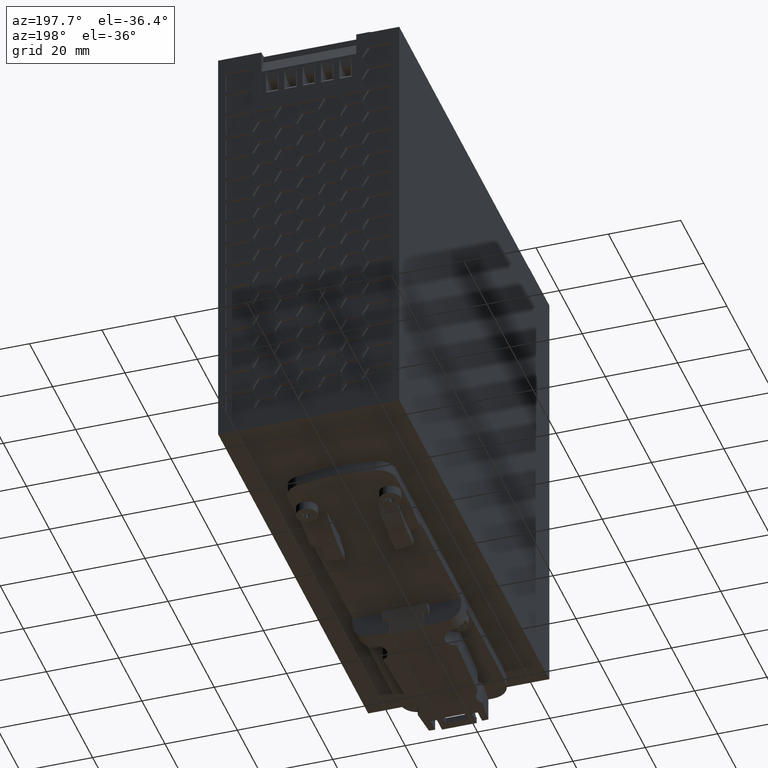
[diagram: clean part render]
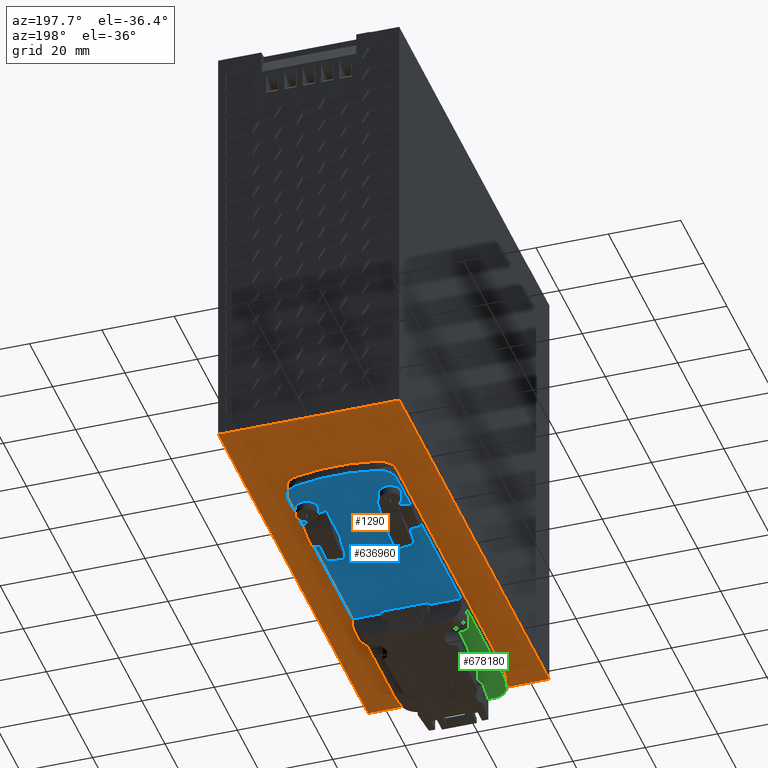
[diagram: same view with three faces highlighted in distinct colors, each labeled with its STEP entity id]
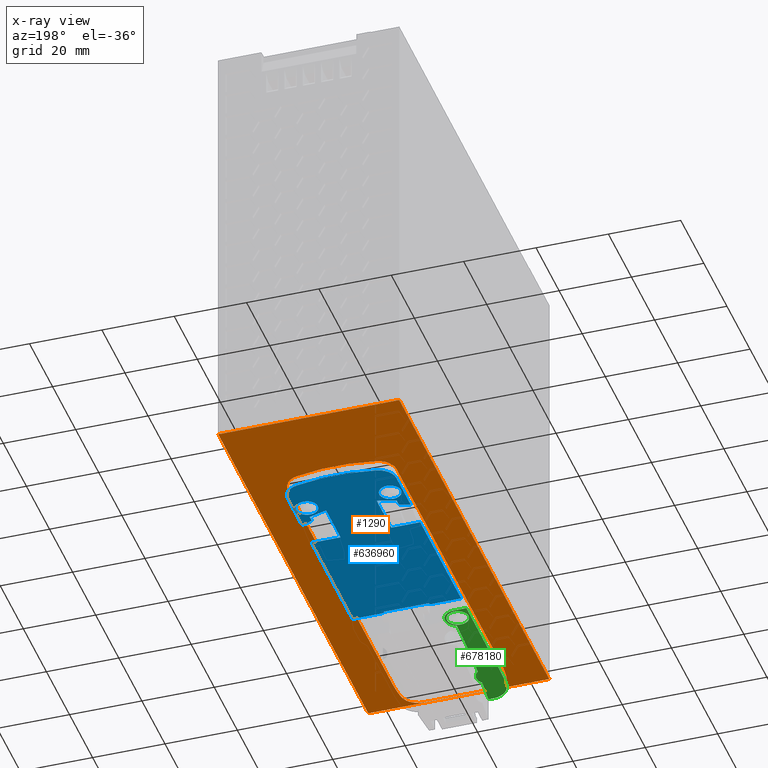
[diagram: x-ray of the same camera — body ghosted, the three highlighted faces saturated]
A machine part, auxiliary view with three faces highlighted in distinct colors.
The next image is the same camera in x-ray (body ghosted, the three faces saturated) — at least one of them is partly hidden behind the body in this view.
Their STEP definitions:

[orange] entity #1290 — the highlighted planar face has unit normal (0, 0, -1).
#10=CARTESIAN_POINT('',(12.,-0.0999999999988432,0.));
#20=DIRECTION('',(0.,-1.,0.));
#30=DIRECTION('',(1.,0.,0.));
#40=AXIS2_PLACEMENT_3D('',#10,#20,#30);
#50=PLANE('',#40);
#60=CARTESIAN_POINT('',(0.,-0.0999999999988432,-0.800000000000011));
#70=DIRECTION('',(-1.,0.,0.));
#80=VECTOR('',#70,1.);
#90=LINE('',#60,#80);
#100=CARTESIAN_POINT('',(36.,-0.0999999999988432,-0.800000000000011));
#110=VERTEX_POINT('',#100);
#120=CARTESIAN_POINT('',(-14.06,-0.0999999999988432,-0.800000000000011))
;
#130=VERTEX_POINT('',#120);
#140=EDGE_CURVE('',#110,#130,#90,.T.);
#150=ORIENTED_EDGE('',*,*,#140,.F.);
#160=CARTESIAN_POINT('',(-14.06,-0.0999999999988432,0.));
#170=DIRECTION('',(0.,0.,1.));
#180=VECTOR('',#170,1.);
#190=LINE('',#160,#180);
#200=CARTESIAN_POINT('',(-14.06,-0.0999999999988432,129.2));
#210=VERTEX_POINT('',#200);
#220=EDGE_CURVE('',#130,#210,#190,.T.);
#230=ORIENTED_EDGE('',*,*,#220,.F.);
#240=CARTESIAN_POINT('',(0.,-0.0999999999988432,129.2));
#250=DIRECTION('',(1.,0.,0.));
#260=VECTOR('',#250,1.);
#270=LINE('',#240,#260);
#280=CARTESIAN_POINT('',(36.,-0.0999999999988432,129.2));
#290=VERTEX_POINT('',#280);
#300=EDGE_CURVE('',#210,#290,#270,.T.);
#310=ORIENTED_EDGE('',*,*,#300,.F.);
#320=CARTESIAN_POINT('',(36.,-0.0999999999988432,0.));
#330=DIRECTION('',(0.,0.,-1.));
#340=VECTOR('',#330,1.);
#350=LINE('',#320,#340);
#360=EDGE_CURVE('',#290,#110,#350,.T.);
#370=ORIENTED_EDGE('',*,*,#360,.F.);
#380=EDGE_LOOP('',(#370,#310,#230,#150));
#390=FACE_OUTER_BOUND('',#380,.T.);
#400=CARTESIAN_POINT('',(0.939522317646622,-0.0999999999988432,
28.126498131923));
#410=DIRECTION('',(9.09881891095558E-45,-1.,1.32377063662335E-39));
#420=DIRECTION('',(1.37468202359202E-5,1.32377063662335E-39,
0.999999999905512));
#430=AXIS2_PLACEMENT_3D('',#400,#410,#420);
#440=CIRCLE('',#430,5.);
#450=CARTESIAN_POINT('',(-4.06047768188094,-0.0999999999988432,
28.1265668660242));
#460=VERTEX_POINT('',#450);
#470=CARTESIAN_POINT('',(-0.17165580883618,-0.0999999999988432,
23.2515331914105));
#480=VERTEX_POINT('',#470);
#490=EDGE_CURVE('',#460,#480,#440,.T.);
#500=ORIENTED_EDGE('',*,*,#490,.F.);
#510=CARTESIAN_POINT('',(10.9401254559918,-0.0999999999988432,
72.0011825965356));
#520=DIRECTION('',(9.09881891095558E-45,-1.,1.32377063662335E-39));
#530=DIRECTION('',(-0.999999999905512,9.09881806515498E-45,
1.37468202359202E-5));
#540=AXIS2_PLACEMENT_3D('',#510,#520,#530);
#550=CIRCLE('',#540,50.);
#560=CARTESIAN_POINT('',(22.0505664112863,-0.0999999999988432,
23.2512277065164));
#570=VERTEX_POINT('',#560);
#580=EDGE_CURVE('',#480,#570,#550,.T.);
#590=ORIENTED_EDGE('',*,*,#580,.F.);
#600=CARTESIAN_POINT('',(20.9395223157569,-0.0999999999988432,
28.1262231955183));
#610=DIRECTION('',(9.09881891095558E-45,-1.,1.32377063662335E-39));
#620=DIRECTION('',(1.37468202359202E-5,1.32377063662335E-39,
0.999999999905512));
#630=AXIS2_PLACEMENT_3D('',#600,#610,#620);
#640=CIRCLE('',#630,5.);
#650=CARTESIAN_POINT('',(25.9395223152844,-0.0999999999988432,
28.1261544614171));
#660=VERTEX_POINT('',#650);
#670=EDGE_CURVE('',#570,#660,#640,.T.);
#680=ORIENTED_EDGE('',*,*,#670,.F.);
#690=CARTESIAN_POINT('',(25.9391356700951,-0.0999999999988432,0.));
#700=DIRECTION('',(-1.37468202359202E-5,0.,-0.999999999905512));
#710=VECTOR('',#700,1.);
#720=LINE('',#690,#710);
#730=CARTESIAN_POINT('',(25.9407715551256,-0.0999999999988432,
119.000976389791));
#740=VERTEX_POINT('',#730);
#750=EDGE_CURVE('',#740,#660,#720,.T.);
#760=ORIENTED_EDGE('',*,*,#750,.T.);
#770=CARTESIAN_POINT('',(-14.0592284410949,-0.0999999999988432,
119.001526262601));
#780=DIRECTION('',(9.09881891095558E-45,-1.,1.32377063662335E-39));
#790=DIRECTION('',(0.999999999905512,-9.09881806515498E-45,
-1.37468202359202E-5));
#800=AXIS2_PLACEMENT_3D('',#770,#780,#790);
#810=CIRCLE('',#800,40.);
#820=CARTESIAN_POINT('',(25.5305828528543,-0.0999999999988432,
124.715267743407));
#830=VERTEX_POINT('',#820);
#840=EDGE_CURVE('',#740,#830,#810,.T.);
#850=ORIENTED_EDGE('',*,*,#840,.F.);
#860=CARTESIAN_POINT('',(20.5818564411106,-0.0999999999988432,
124.001050058306));
#870=DIRECTION('',(9.09881891095558E-45,-1.,1.32377063662335E-39));
#880=DIRECTION('',(1.37468202359202E-5,1.32377063662335E-39,
0.999999999905512));
#890=AXIS2_PLACEMENT_3D('',#860,#870,#880);
#900=CIRCLE('',#890,5.);
#910=CARTESIAN_POINT('',(20.5819251752118,-0.0999999999988432,
129.001050057834));
#920=VERTEX_POINT('',#910);
#930=EDGE_CURVE('',#830,#920,#900,.T.);
#940=ORIENTED_EDGE('',*,*,#930,.F.);
#950=CARTESIAN_POINT('',(0.,-0.0999999999988432,129.001332993859));
#960=DIRECTION('',(-0.999999999905512,0.,1.37468202359202E-5));
#970=VECTOR('',#960,1.);
#980=LINE('',#950,#970);
#990=CARTESIAN_POINT('',(1.29989287427866,-0.0999999999988432,
129.001315124466));
#1000=VERTEX_POINT('',#990);
#1010=EDGE_CURVE('',#920,#1000,#980,.T.);
#1020=ORIENTED_EDGE('',*,*,#1010,.F.);
#1030=CARTESIAN_POINT('',(1.29982414017748,-0.0999999999988432,
124.001315124938));
#1040=DIRECTION('',(9.09881891095558E-45,-1.,1.32377063662335E-39));
#1050=DIRECTION('',(1.37468202359202E-5,1.32377063662335E-39,
0.999999999905512));
#1060=AXIS2_PLACEMENT_3D('',#1030,#1040,#1050);
#1070=CIRCLE('',#1060,5.);
#1080=CARTESIAN_POINT('',(-3.64888263325155,-0.0999999999988432,
124.715668868274));
#1090=VERTEX_POINT('',#1080);
#1100=EDGE_CURVE('',#1000,#1090,#1070,.T.);
#1110=ORIENTED_EDGE('',*,*,#1100,.F.);
#1120=CARTESIAN_POINT('',(35.9407715541807,-0.0999999999988432,
119.000838921589));
#1130=DIRECTION('',(9.09881891095558E-45,-1.,1.32377063662335E-39));
#1140=DIRECTION('',(-0.999999999905512,9.09881806515498E-45,
1.37468202359202E-5));
#1150=AXIS2_PLACEMENT_3D('',#1120,#1130,#1140);
#1160=CIRCLE('',#1150,40.);
#1170=CARTESIAN_POINT('',(-4.0592284420398,-0.0999999999988432,
119.001388794398));
#1180=VERTEX_POINT('',#1170);
#1190=EDGE_CURVE('',#1090,#1180,#1160,.T.);
#1200=ORIENTED_EDGE('',*,*,#1190,.F.);
#1210=CARTESIAN_POINT('',(-4.06086433273954,-0.0999999999988432,0.));
#1220=DIRECTION('',(-1.37468202359202E-5,0.,-0.999999999905512));
#1230=VECTOR('',#1220,1.);
#1240=LINE('',#1210,#1230);
#1250=EDGE_CURVE('',#1180,#460,#1240,.T.);
#1260=ORIENTED_EDGE('',*,*,#1250,.F.);
#1270=EDGE_LOOP('',(#1260,#1200,#1110,#1020,#940,#850,#760,#680,#590,
#500));
#1280=FACE_BOUND('',#1270,.T.);
#1290=ADVANCED_FACE('',(#390,#1280),#50,.T.);

[blue] entity #636960 — the highlighted planar face has unit normal (0, 0, -1).
#629230=CARTESIAN_POINT('',(-6.49311264833948,-6.07193078061609,
57.3083356895926));
#629240=CARTESIAN_POINT('',(-4.6269376347762,-6.48936042862193,
57.3066117863316));
#629250=CARTESIAN_POINT('',(-2.76076262121292,-6.90679007662779,
57.3048878830707));
#629260=CARTESIAN_POINT('',(0.632009130355229,-7.66569184507289,
57.3017537663647));
#629270=CARTESIAN_POINT('',(2.24884621746503,-7.91225648277388,
57.3005178839394));
#629280=CARTESIAN_POINT('',(5.68752983157772,-8.2731262918686,
57.2980422244164));
#629290=CARTESIAN_POINT('',(7.58933904850747,-8.47271008789782,
57.296673028344));
#629300=CARTESIAN_POINT('',(9.4911482654372,-8.67229388392702,
57.2953038322716));
#629310=CARTESIAN_POINT('',(-6.51405997010994,-6.15724139880369,
55.2493173847864));
#629320=CARTESIAN_POINT('',(-4.63738426922734,-6.54111271368932,
55.2804699159845));
#629330=CARTESIAN_POINT('',(-2.76070856834474,-6.92498402857495,
55.3116224471826));
#629340=CARTESIAN_POINT('',(0.631902455826289,-7.61893773305972,
55.3679392741783));
#629350=CARTESIAN_POINT('',(2.24798183928126,-7.85151923842788,
55.3934363849417));
#629360=CARTESIAN_POINT('',(5.68595478527752,-8.19073841994543,
55.4426996221202));
#629370=CARTESIAN_POINT('',(7.58944450955992,-8.37855264549077,
55.4699750158557));
#629380=CARTESIAN_POINT('',(9.49293423384233,-8.56636687103612,
55.4972504095912));
#629390=CARTESIAN_POINT('',(-6.53163447362271,-6.24398788001157,
53.189671870789));
#629400=CARTESIAN_POINT('',(-4.64614449454963,-6.59358293026684,
53.2540144410418));
#629410=CARTESIAN_POINT('',(-2.76065451547655,-6.94317798052213,
53.3183570112946));
#629420=CARTESIAN_POINT('',(0.631795781297349,-7.57218362104654,
53.4341247819919));
#629430=CARTESIAN_POINT('',(2.24711746109748,-7.79078199408189,
53.486354885944));
#629440=CARTESIAN_POINT('',(5.68437973897732,-8.10835054802222,
53.5873570198239));
#629450=CARTESIAN_POINT('',(7.58881135334062,-8.28430092508354,
53.6433177354541));
#629460=CARTESIAN_POINT('',(9.49324296770391,-8.46025130214486,
53.6992784510844));
#629470=CARTESIAN_POINT('',(-6.5673332202858,-6.45036189252249,
49.4199811770693));
#629480=CARTESIAN_POINT('',(-4.66392953439311,-6.71903220769434,
49.3256063479099));
#629490=CARTESIAN_POINT('',(-2.76052584850043,-6.98770252286618,
49.2312315187505));
#629500=CARTESIAN_POINT('',(0.631554660502871,-7.46650339217036,
49.06304490605));
#629510=CARTESIAN_POINT('',(2.24507821751446,-7.64749050650361,
48.9871625391904));
#629520=CARTESIAN_POINT('',(5.6804282860973,-7.90004534760166,
48.8404112688814));
#629530=CARTESIAN_POINT('',(7.58839347456976,-8.0403122302702,
48.7589068196917));
#629540=CARTESIAN_POINT('',(9.49635866304222,-8.18057911293872,
48.677402370502));
#629550=CARTESIAN_POINT('',(-6.52104582401323,-6.04829819696226,
45.2953865490059));
#629560=CARTESIAN_POINT('',(-4.63536481747004,-6.2131075275444,
44.9574662681262));
#629570=CARTESIAN_POINT('',(-2.74968381092684,-6.37791685812655,
44.6195459872464));
#629580=CARTESIAN_POINT('',(0.620626125105877,-6.6724833953534,
44.0155752857947));
#629590=CARTESIAN_POINT('',(2.22881840977133,-6.78591233526711,
43.7673373010039));
#629600=CARTESIAN_POINT('',(5.66378801480138,-6.93921185831042,
43.331495312676));
#629610=CARTESIAN_POINT('',(7.55679252733617,-7.02369490248801,
43.0913037111408));
#629620=CARTESIAN_POINT('',(9.44979703987094,-7.1081779466656,
42.8511121096056));
#629630=CARTESIAN_POINT('',(-6.38285937228092,-4.37137928671241,
41.4705051566888));
#629640=CARTESIAN_POINT('',(-4.55984905978044,-4.41269459471098,
40.9134631901381));
#629650=CARTESIAN_POINT('',(-2.73683874727997,-4.45400990270954,
40.3564212235873));
#629660=CARTESIAN_POINT('',(0.60771101026463,-4.529808214108,
39.3344552141828));
#629670=CARTESIAN_POINT('',(2.21064428553766,-4.55892010890649,
38.9216568595576));
#629680=CARTESIAN_POINT('',(5.64634012675711,-4.60628942507581,
38.204710604203));
#629690=CARTESIAN_POINT('',(7.50453092280356,-4.63190904665722,
37.8169513279083));
#629700=CARTESIAN_POINT('',(9.36272171885001,-4.65752866823862,
37.4291920516136));
#629710=CARTESIAN_POINT('',(-6.23979277964302,-2.2984814082195,
38.2701099862047));
#629720=CARTESIAN_POINT('',(-4.48620226584649,-2.27340280328271,
37.5817432692417));
#629730=CARTESIAN_POINT('',(-2.73261175204996,-2.24832419834591,
36.8933765522788));
#629740=CARTESIAN_POINT('',(0.603402349360829,-2.20061489617154,
35.5838341838279));
#629750=CARTESIAN_POINT('',(2.20461078322252,-2.18229146073094,
35.0507715196252));
#629760=CARTESIAN_POINT('',(5.64057713109693,-2.15248573584879,
34.1031461053622));
#629770=CARTESIAN_POINT('',(7.45673246209035,-2.13673126660833,
33.6022579203067));
#629780=CARTESIAN_POINT('',(9.27288779308378,-2.12097679736788,
33.1013697352512));
#629790=CARTESIAN_POINT('',(-6.26183325276123,-1.17379962331364,
36.5533334629942));
#629800=CARTESIAN_POINT('',(-4.49630347037309,-1.17569003400325,
35.8816504820132));
#629810=CARTESIAN_POINT('',(-2.73077368798494,-1.17758044469284,
35.2099675010321));
#629820=CARTESIAN_POINT('',(0.601516488174113,-1.18114843716324,
33.9422219091175));
#629830=CARTESIAN_POINT('',(2.20207817055491,-1.18468186249413,
33.4259352744864));
#629840=CARTESIAN_POINT('',(5.63834527513697,-1.19896955720663,
32.5076278897219));
#629850=CARTESIAN_POINT('',(7.4603950511381,-1.20654547903056,
32.0207036449566));
#629860=CARTESIAN_POINT('',(9.28244482713924,-1.2141214008545,
31.5337794001913));
#629870=CARTESIAN_POINT('',(-6.28240593840731,-0.0482856258175648,
34.8353419902482));
#629880=CARTESIAN_POINT('',(-4.50567078116362,-0.0775611584286739,
34.1809502200168));
#629890=CARTESIAN_POINT('',(-2.72893562391993,-0.106836691039769,
33.5265584497853));
#629900=CARTESIAN_POINT('',(0.599630626987395,-0.16168197815494,
32.3006096344071));
#629910=CARTESIAN_POINT('',(2.1995455578873,-0.187072264257319,
31.8010990293476));
#629920=CARTESIAN_POINT('',(5.63611341917701,-0.24545337856445,
30.9121096740816));
#629930=CARTESIAN_POINT('',(7.46348624617957,-0.276497160093315,
30.4393953099607));
#629940=CARTESIAN_POINT('',(9.29085907318212,-0.307540941622173,
29.9666809458399));
#629950=B_SPLINE_SURFACE_WITH_KNOTS('',3,3,((#629230,#629310,#629390,
#629470,#629550,#629630,#629710,#629790,#629870),(#629240,#629320,
#629400,#629480,#629560,#629640,#629720,#629800,#629880),(#629250,
#629330,#629410,#629490,#629570,#629650,#629730,#629810,#629890),(
#629260,#629340,#629420,#629500,#629580,#629660,#629740,#629820,#629900)
,(#629270,#629350,#629430,#629510,#629590,#629670,#629750,#629830,
#629910),(#629280,#629360,#629440,#629520,#629600,#629680,#629760,
#629840,#629920),(#629290,#629370,#629450,#629530,#629610,#629690,
#629770,#629850,#629930),(#629300,#629380,#629460,#629540,#629620,
#629700,#629780,#629860,#629940)),.UNSPECIFIED.,.F.,.F.,.F.,(4,2,2,4),(4
,2,1,2,4),(-0.530299195767868,0.0083302807718563,0.494384454739451,
1.03935536184108),(-0.34261094403884,2.36588213699451E-9,0.4974044135323
,0.994808800538165,1.33311810925078),.UNSPECIFIED.);
#630520=CARTESIAN_POINT('',(3.93963210021943,-3.09999999999985,
36.1125114391922));
#630530=VERTEX_POINT('',#630520);
#630560=CARTESIAN_POINT('',(5.71470414482225,-3.09999999999985,
41.3533186847772));
#630570=DIRECTION('',(9.09881891095558E-45,-1.,1.32377063662335E-39));
#630580=DIRECTION('',(-0.999999999905512,9.09881806515498E-45,
1.37468202359202E-5));
#630590=AXIS2_PLACEMENT_3D('',#630560,#630570,#630580);
#630600=PLANE('',#630590);
#630610=CARTESIAN_POINT('',(3.93963210021943,-3.09999999999985,
36.1125114391922));
#630620=CARTESIAN_POINT('',(3.51710526948471,-3.09999999999985,
36.2180883742663));
#630630=CARTESIAN_POINT('',(3.09562910633337,-3.09999999999985,
36.3273275225661));
#630640=CARTESIAN_POINT('',(2.67551978532777,-3.09999999999985,
36.4429976686897));
#630650=CARTESIAN_POINT('',(2.25550754492674,-3.09999999999985,
36.5586410852762));
#630660=CARTESIAN_POINT('',(1.83693345260186,-3.09999999999985,
36.6797883880292));
#630670=CARTESIAN_POINT('',(1.42000081185928,-3.09999999999985,
36.8063531855741));
#630680=CARTESIAN_POINT('',(1.00306817364785,-3.09999999999985,
36.9329179823507));
#630690=CARTESIAN_POINT('',(0.587777814351307,-3.09999999999985,
37.0648999985642));
#630700=CARTESIAN_POINT('',(0.174326512134884,-3.09999999999985,
37.2021912762752));
#630710=CARTESIAN_POINT('',(-0.239199164245867,-3.09999999999985,
37.339507250786));
#630720=CARTESIAN_POINT('',(-0.650444119146598,-3.09999999999985,
37.4826856189756));
#630730=CARTESIAN_POINT('',(-1.06034704242311,-3.09999999999985,
37.6297954035982));
#630740=B_SPLINE_CURVE_WITH_KNOTS('',3,(#630610,#630620,#630630,#630640,
#630650,#630660,#630670,#630680,#630690,#630700,#630710,#630720,#630730)
,.UNSPECIFIED.,.F.,.F.,(4,3,3,3,4),(0.,1.30662994483364,2.61370748606217
,3.92079877700309,5.22745320657172),.UNSPECIFIED.);
#630750=SURFACE_CURVE('',#630740,(#630600,#629950),.CURVE_3D.);
#630760=CARTESIAN_POINT('',(-1.0603470424231,-3.09999999999985,
37.6297954035982));
#630770=VERTEX_POINT('',#630760);
#630780=EDGE_CURVE('',#630530,#630770,#630750,.T.);
#631260=CARTESIAN_POINT('',(3.9398044684007,-3.09999999999985,
48.6512788264836));
#631270=VERTEX_POINT('',#631260);
#631300=CARTESIAN_POINT('',(3.94001819894146,-3.09999999999985,
64.1989136302145));
#631310=DIRECTION('',(-1.37468202359202E-5,-1.32377063662335E-39,
-0.999999999905512));
#631320=VECTOR('',#631310,1.);
#631330=LINE('',#631300,#631320);
#631340=EDGE_CURVE('',#631270,#630530,#631330,.T.);
#632190=CARTESIAN_POINT('',(-4.05970751872503,-3.09999999999985,
84.1513887976912));
#632200=VERTEX_POINT('',#632190);
#632230=CARTESIAN_POINT('',(-4.05998180030264,-3.09999999999985,
64.1990236047764));
#632240=DIRECTION('',(1.37468202359202E-5,1.32377063662335E-39,
0.999999999905512));
#632250=VECTOR('',#632240,1.);
#632260=LINE('',#632230,#632250);
#632270=CARTESIAN_POINT('',(-4.0601955308434,-3.09999999999985,
48.6513888010455));
#632280=VERTEX_POINT('',#632270);
#632290=EDGE_CURVE('',#632280,#632200,#632260,.T.);
#632440=CARTESIAN_POINT('',(-14.4376658252916,-1.70441604344119,
59.441377915413));
#632450=CARTESIAN_POINT('',(-10.9506281777013,-2.66315462780622,
59.4283094106237));
#632460=CARTESIAN_POINT('',(-7.46359053011099,-3.62189321217125,
59.4152409058345));
#632470=CARTESIAN_POINT('',(-3.00008473402581,-4.84910543662229,
59.3985128538982));
#632480=CARTESIAN_POINT('',(-2.0203047280858,-5.05962099943143,
59.3948774303976));
#632490=CARTESIAN_POINT('',(2.49903372379928,-5.83586521223752,
59.3790755696027));
#632500=CARTESIAN_POINT('',(6.07658387603958,-6.4503473164804,
59.3665666703259));
#632510=CARTESIAN_POINT('',(9.65413402827988,-7.06482942072328,
59.354057771049));
#632520=CARTESIAN_POINT('',(-14.5250949355407,-2.02158789203813,
55.3593402534516));
#632530=CARTESIAN_POINT('',(-10.9940123264814,-2.86380690771618,
55.4696483360222));
#632540=CARTESIAN_POINT('',(-7.46292971742216,-3.70602592339425,
55.5799564185929));
#632550=CARTESIAN_POINT('',(-3.00035671103003,-4.77042012227036,
55.7193634861034));
#632560=CARTESIAN_POINT('',(-2.02121915266269,-4.95735439245213,
55.7488345762596));
#632570=CARTESIAN_POINT('',(2.49534378186373,-5.65403637972801,
55.8783203650417));
#632580=CARTESIAN_POINT('',(6.08674578293268,-6.20801185167029,
55.9812826236626));
#632590=CARTESIAN_POINT('',(9.67814778400163,-6.76198732361257,
56.0842448822834));
#632600=CARTESIAN_POINT('',(-14.5887754189316,-2.35008544179697,
51.2726071259709));
#632610=CARTESIAN_POINT('',(-11.0255221618325,-3.0701220382071,
51.5086395286611));
#632620=CARTESIAN_POINT('',(-7.46226890473334,-3.79015863461722,
51.7446719313512));
#632630=CARTESIAN_POINT('',(-3.00062868803427,-4.69173480791843,
52.0402141183087));
#632640=CARTESIAN_POINT('',(-2.02213357723958,-4.85508778547281,
52.1027917221217));
#632650=CARTESIAN_POINT('',(2.4916538399282,-5.47220754721855,
52.3775651604807));
#632660=CARTESIAN_POINT('',(6.08995053679934,-5.96416248329236,
52.5966087848825));
#632670=CARTESIAN_POINT('',(9.68824723367049,-6.45611741936619,
52.8156524092843));
#632680=CARTESIAN_POINT('',(-14.7085461784145,-2.96885470264525,
46.2367297987539));
#632690=CARTESIAN_POINT('',(-11.0848142330258,-3.45896317019364,
46.0147845099369));
#632700=CARTESIAN_POINT('',(-7.46108228763699,-3.94907163774202,
45.7928392211199));
#632710=CARTESIAN_POINT('',(-3.00111071151312,-4.55228122041133,
45.5196761686381));
#632720=CARTESIAN_POINT('',(-2.02379912458948,-4.66881777420783,
45.4618317492313));
#632730=CARTESIAN_POINT('',(2.48459985134528,-5.11477929631874,
45.2078171302107));
#632740=CARTESIAN_POINT('',(6.10994209296155,-5.47339066875367,
45.0035561645689));
#632750=CARTESIAN_POINT('',(9.73528433457783,-5.8320020411886,
44.799295198927));
#632760=CARTESIAN_POINT('',(-14.6652376719585,-2.8222892265708,
44.2385489674479));
#632770=CARTESIAN_POINT('',(-11.0554703862404,-3.19199532570333,
43.7288859786745));
#632780=CARTESIAN_POINT('',(-7.44570310052225,-3.56170142483587,
43.2192229899011));
#632790=CARTESIAN_POINT('',(-3.00595596852884,-4.0164126190445,
42.5923751591165));
#632800=CARTESIAN_POINT('',(-2.03168508306885,-4.104183160059,
42.4656701643419));
#632810=CARTESIAN_POINT('',(2.4688448958099,-4.43934325728173,
41.9345010588));
#632820=CARTESIAN_POINT('',(6.08001376052307,-4.70827151983414,
41.5082976239085));
#632830=CARTESIAN_POINT('',(9.69118262523625,-4.97719978238656,
41.082094189017));
#632840=CARTESIAN_POINT('',(-14.3546817774305,-1.54931680142654,
39.990537531174));
#632850=CARTESIAN_POINT('',(-10.8848565265901,-1.63722363528622,
38.9349143495557));
#632860=CARTESIAN_POINT('',(-7.41503127574972,-1.72513046914591,
37.8792911679374));
#632870=CARTESIAN_POINT('',(-3.01562354533007,-1.83658795662179,
36.5408615785808));
#632880=CARTESIAN_POINT('',(-2.047259579784,-1.85819126234517,
36.2743336387178));
#632890=CARTESIAN_POINT('',(2.43838327161155,-1.9430079972902,
35.1713526041396));
#632900=CARTESIAN_POINT('',(5.94964156167467,-2.00940059107845,
34.3079643608602));
#632910=CARTESIAN_POINT('',(9.46089985173778,-2.07579318486669,
33.4445761175808));
#632920=CARTESIAN_POINT('',(-14.4826122607575,-0.225557747270857,
36.0064057095829));
#632930=CARTESIAN_POINT('',(-10.9400582087974,-0.336535036818349,
35.0973193730253));
#632940=CARTESIAN_POINT('',(-7.39750415683721,-0.447512326365834,
34.1882330364678));
#632950=CARTESIAN_POINT('',(-3.02117610244823,-0.584609183188102,
33.0651845296039));
#632960=CARTESIAN_POINT('',(-2.05589763605385,-0.612500647171688,
32.8404433325234));
#632970=CARTESIAN_POINT('',(2.42292420020921,-0.734077769296187,
31.9024411862033));
#632980=CARTESIAN_POINT('',(5.97759073861633,-0.830568798332601,
31.1579853975221));
#632990=CARTESIAN_POINT('',(9.53225727702344,-0.927059827369016,
30.4135296088408));
#633000=CARTESIAN_POINT('',(-14.592940464538,1.099745943859,
32.0011028609735));
#633010=CARTESIAN_POINT('',(-10.9864587512314,0.96492588013661,
31.2491388829858));
#633020=CARTESIAN_POINT('',(-7.37997703792472,0.830105816414216,
30.4971749049981));
#633030=CARTESIAN_POINT('',(-3.02672865956639,0.66736959024559,
29.589507480627));
#633040=CARTESIAN_POINT('',(-2.06453569232372,0.633189968001792,
29.4065530263291));
#633050=CARTESIAN_POINT('',(2.40746512880687,0.474852458697837,
28.6335297682671));
#633060=CARTESIAN_POINT('',(5.99934189781883,0.347676985329221,
28.0126434147989));
#633070=CARTESIAN_POINT('',(9.59121866683081,0.220501511960611,
27.3917570613307));
#633080=B_SPLINE_SURFACE_WITH_KNOTS('',3,3,((#632440,#632520,#632600,
#632680,#632760,#632840,#632920,#633000),(#632450,#632530,#632610,
#632690,#632770,#632850,#632930,#633010),(#632460,#632540,#632620,
#632700,#632780,#632860,#632940,#633020),(#632470,#632550,#632630,
#632710,#632790,#632870,#632950,#633030),(#632480,#632560,#632640,
#632720,#632800,#632880,#632960,#633040),(#632490,#632570,#632650,
#632730,#632810,#632890,#632970,#633050),(#632500,#632580,#632660,
#632740,#632820,#632900,#632980,#633060),(#632510,#632590,#632670,
#632750,#632830,#632910,#632990,#633070)),.UNSPECIFIED.,.F.,.F.,.F.,(4,2
,2,4),(4,2,2,4),(-1.04425037197643,0.00840241999769925,0.303174667007196
,1.36540567626834),(-0.672680963199468,0.00647129604993427,
0.596721513342289,1.28419559916893),.UNSPECIFIED.);
#633240=CARTESIAN_POINT('',(-4.06030774031951,-3.09999999999984,
40.4888119886038));
#633250=VERTEX_POINT('',#633240);
#633280=CARTESIAN_POINT('',(-4.05998180030264,-3.09999999999985,
64.1990236047764));
#633290=DIRECTION('',(1.37468202359202E-5,1.32377063662335E-39,
0.999999999905512));
#633300=VECTOR('',#633290,1.);
#633310=LINE('',#633280,#633300);
#633320=CARTESIAN_POINT('',(-4.06047768188094,-3.09999999999985,
28.1265668660242));
#633330=VERTEX_POINT('',#633320);
#633340=EDGE_CURVE('',#633330,#633250,#633310,.T.);
#633520=CARTESIAN_POINT('',(22.4395975444942,-3.09999999999985,
33.5986593169315));
#633530=DIRECTION('',(9.09881891095558E-45,-1.,1.32377063662335E-39));
#633540=DIRECTION('',(1.37468202359202E-5,1.32377063662335E-39,
0.999999999905512));
#633550=AXIS2_PLACEMENT_3D('',#633520,#633530,#633540);
#633560=CIRCLE('',#633550,3.);
#633570=CARTESIAN_POINT('',(22.4396387849549,-3.09999999999985,
36.598659316648));
#633580=VERTEX_POINT('',#633570);
#633590=CARTESIAN_POINT('',(22.4395563040335,-3.09999999999985,
30.5986593172149));
#633600=VERTEX_POINT('',#633590);
#633610=EDGE_CURVE('',#633580,#633600,#633560,.T.);
#633620=ORIENTED_EDGE('',*,*,#633610,.F.);
#633630=EDGE_CURVE('',#633600,#633580,#633560,.T.);
#633640=ORIENTED_EDGE('',*,*,#633630,.F.);
#633650=EDGE_LOOP('',(#633640,#633620));
#633660=FACE_BOUND('',#633650,.T.);
#633670=CARTESIAN_POINT('',(-0.560402453332566,-3.09999999999985,
33.5989754937969));
#633680=DIRECTION('',(9.09881891095558E-45,-1.,1.32377063662335E-39));
#633690=DIRECTION('',(1.37468202359202E-5,1.32377063662335E-39,
0.999999999905512));
#633700=AXIS2_PLACEMENT_3D('',#633670,#633680,#633690);
#633710=CIRCLE('',#633700,3.);
#633720=CARTESIAN_POINT('',(-0.560361212871858,-3.09999999999985,
36.5989754935134));
#633730=VERTEX_POINT('',#633720);
#633740=CARTESIAN_POINT('',(-0.560443693793274,-3.09999999999985,
30.5989754940803));
#633750=VERTEX_POINT('',#633740);
#633760=EDGE_CURVE('',#633730,#633750,#633710,.T.);
#633770=ORIENTED_EDGE('',*,*,#633760,.F.);
#633780=EDGE_CURVE('',#633750,#633730,#633710,.T.);
#633790=ORIENTED_EDGE('',*,*,#633780,.F.);
#633800=EDGE_LOOP('',(#633790,#633770));
#633810=FACE_BOUND('',#633800,.T.);
#633820=CARTESIAN_POINT('',(25.9400181968627,-3.09999999999985,
64.1986112001693));
#633830=DIRECTION('',(1.37468202359202E-5,1.32377063662335E-39,
0.999999999905512));
#633840=VECTOR('',#633830,1.);
#633850=LINE('',#633820,#633840);
#633860=CARTESIAN_POINT('',(25.939804466322,-3.09999999999985,
48.6509763964384));
#633870=VERTEX_POINT('',#633860);
#633880=CARTESIAN_POINT('',(25.9402924784403,-3.09999999999985,
84.1509763930841));
#633890=VERTEX_POINT('',#633880);
#633900=EDGE_CURVE('',#633870,#633890,#633850,.T.);
#633910=ORIENTED_EDGE('',*,*,#633900,.T.);
#633920=CARTESIAN_POINT('',(35.9398044653771,-3.09999999999985,
48.650838928236));
#633930=DIRECTION('',(0.999999999905512,-9.09881806515498E-45,
-1.37468202359202E-5));
#633940=VECTOR('',#633930,1.);
#633950=LINE('',#633920,#633940);
#633960=CARTESIAN_POINT('',(17.9398044670779,-3.09999999999985,
48.6510863710003));
#633970=VERTEX_POINT('',#633960);
#633980=EDGE_CURVE('',#633970,#633870,#633950,.T.);
#633990=ORIENTED_EDGE('',*,*,#633980,.T.);
#634000=CARTESIAN_POINT('',(17.9400181976186,-3.09999999999985,
64.1987211747312));
#634010=DIRECTION('',(-1.37468202359202E-5,-1.32377063662335E-39,
-0.999999999905512));
#634020=VECTOR('',#634010,1.);
#634030=LINE('',#634000,#634020);
#634040=CARTESIAN_POINT('',(17.9396320988966,-3.10000000000198,
36.1123189837125));
#634050=VERTEX_POINT('',#634040);
#634060=EDGE_CURVE('',#633970,#634050,#634030,.T.);
#634070=ORIENTED_EDGE('',*,*,#634060,.F.);
#634080=CARTESIAN_POINT('',(28.3729595938838,-6.07193078061609,
57.3078563919651));
#634090=CARTESIAN_POINT('',(26.5067845336295,-6.48936042862193,
57.3061837966497));
#634100=CARTESIAN_POINT('',(24.6406094733752,-6.90679007662779,
57.3045112013342));
#634110=CARTESIAN_POINT('',(21.2478376369211,-7.66569184507289,
57.3014703642762));
#634120=CARTESIAN_POINT('',(19.6310005164434,-7.91225648277388,
57.300278934589));
#634130=CARTESIAN_POINT('',(16.1923168355655,-8.2731262918686,
57.2978978169979));
#634140=CARTESIAN_POINT('',(14.2905075817104,-8.47271008789782,
57.2965809085848));
#634150=CARTESIAN_POINT('',(12.3886983278552,-8.67229388392702,
57.2952640001717));
#634160=CARTESIAN_POINT('',(28.3938503057374,-6.15724139880369,
55.248837512019));
#634170=CARTESIAN_POINT('',(26.5171754620606,-6.54111271368932,
55.2800416398523));
#634180=CARTESIAN_POINT('',(24.6405006183838,-6.92498402857495,
55.3112457676857));
#634190=CARTESIAN_POINT('',(21.2478911438496,-7.61893773305972,
55.3676558698878));
#634200=CARTESIAN_POINT('',(19.6318124620138,-7.85151923842788,
55.3931974125471));
#634210=CARTESIAN_POINT('',(16.1938408717426,-8.19073841994543,
55.4425551720991));
#634220=CARTESIAN_POINT('',(14.2903518980795,-8.37855264549077,
55.4698828996864));
#634230=CARTESIAN_POINT('',(12.3868629244164,-8.56636687103612,
55.4972106272737));
#634240=CARTESIAN_POINT('',(28.4113681820903,-6.24398788001157,
53.1891915156129));
#634250=CARTESIAN_POINT('',(26.5258799727413,-6.59358293026684,
53.253585924825));
#634260=CARTESIAN_POINT('',(24.6403917633923,-6.94317798052213,
53.3179803340371));
#634270=CARTESIAN_POINT('',(21.2479446507781,-7.57218362104654,
53.4338413754994));
#634280=CARTESIAN_POINT('',(19.6326244075842,-7.79078199408189,
53.4861158905052));
#634290=CARTESIAN_POINT('',(16.1953649079198,-8.10835054802222,
53.5872125272002));
#634300=CARTESIAN_POINT('',(14.2909348328401,-8.28430092508354,
53.6432256025674));
#634310=CARTESIAN_POINT('',(12.3865047577604,-8.46025130214486,
53.6992386779347));
#634320=CARTESIAN_POINT('',(28.4469632862193,-6.45036189252249,
49.4194998418295));
#634330=CARTESIAN_POINT('',(26.5435570063383,-6.71903220769434,
49.3251773442024));
#634340=CARTESIAN_POINT('',(24.6401507264574,-6.98770252286618,
49.2308548465753));
#634350=CARTESIAN_POINT('',(21.2480655946739,-7.46650339217036,
49.0627614945803));
#634360=CARTESIAN_POINT('',(19.6345399519896,-7.64749050650361,
48.986923489386));
#634370=CARTESIAN_POINT('',(16.1991858499785,-7.90004534760166,
48.8402666694121));
#634380=CARTESIAN_POINT('',(14.2912184213731,-8.0403122302702,
48.7588146771621));
#634390=CARTESIAN_POINT('',(12.3832509927678,-8.18057911293872,
48.6773626849121));
#634400=CARTESIAN_POINT('',(28.4005624898424,-6.04829819696226,
45.294906487934));
#634410=CARTESIAN_POINT('',(26.5148721933532,-6.2131075275444,
44.9570380514176));
#634420=CARTESIAN_POINT('',(24.629181896864,-6.37791685812655,
44.6191696149012));
#634430=CARTESIAN_POINT('',(21.2588553567517,-6.6724833953534,
44.0152915757675));
#634440=CARTESIAN_POINT('',(19.6506562477282,-6.78591233526711,
43.767097806131));
#634450=CARTESIAN_POINT('',(16.2156746611135,-6.93921185831042,
43.3313502577871));
#634460=CARTESIAN_POINT('',(14.3226635455526,-7.02369490248801,
43.0912107019281));
#634470=CARTESIAN_POINT('',(12.4296524299918,-7.1081779466656,
42.8510711460692));
#634480=CARTESIAN_POINT('',(28.2622708782485,-4.37137928671241,
41.4700288963112));
#634490=CARTESIAN_POINT('',(26.4392452513255,-4.41269459471098,
40.9130370511611));
#634500=CARTESIAN_POINT('',(24.6162196244024,-4.45400990270954,
40.356045206011));
#634510=CARTESIAN_POINT('',(21.2716417705559,-4.529808214108,
39.3341711508412));
#634520=CARTESIAN_POINT('',(19.6686971465591,-4.55892010890649,
38.9214168668433));
#634530=CARTESIAN_POINT('',(16.2329815951756,-4.60628942507581,
38.2045650715458));
#634540=CARTESIAN_POINT('',(14.3747801389173,-4.63190904665722,
37.8168568838273));
#634550=CARTESIAN_POINT('',(12.516578682659,-4.65752866823862,
37.4291486961088));
#634560=CARTESIAN_POINT('',(28.1191162951505,-2.2984814082195,
38.2696376604581));
#634570=CARTESIAN_POINT('',(26.3655068563097,-2.27340280328271,
37.5813191563424));
#634580=CARTESIAN_POINT('',(24.6118974174689,-2.24832419834591,
36.8930006522268));
#634590=CARTESIAN_POINT('',(21.2758473132319,-2.20061489617154,
35.5835500034431));
#634600=CARTESIAN_POINT('',(19.6746242241421,-2.18229146073094,
35.0505313624908));
#634610=CARTESIAN_POINT('',(16.2386318238939,-2.15248573584879,
34.1030004158095));
#634620=CARTESIAN_POINT('',(14.4224627223472,-2.13673126660833,
33.602162163665));
#634630=CARTESIAN_POINT('',(12.6062936208006,-2.12097679736788,
33.1013239115205));
#634640=CARTESIAN_POINT('',(28.1411095678239,-1.17379962331364,
36.5528605319236));
#634650=CARTESIAN_POINT('',(26.3755613190926,-1.17569003400325,
35.8812260920375));
#634660=CARTESIAN_POINT('',(24.6100130703614,-1.17758044469284,
35.2095916521514));
#634670=CARTESIAN_POINT('',(21.2776880405202,-1.18114843716324,
33.941937677504));
#634680=CARTESIAN_POINT('',(19.6771121641453,-1.18468186249413,
33.4256950483354));
#634690=CARTESIAN_POINT('',(16.2408198132489,-1.19896955720663,
32.5074821394103));
#634700=CARTESIAN_POINT('',(14.4187566506162,-1.20654547903056,
32.0206079896105));
#634710=CARTESIAN_POINT('',(12.5966934879836,-1.2141214008545,
31.5337338398108));
#634720=CARTESIAN_POINT('',(28.1616350196223,-0.0482856258175648,
34.8348684942089));
#634730=CARTESIAN_POINT('',(26.384881871438,-0.0775611584286739,
34.1805255731424));
#634740=CARTESIAN_POINT('',(24.6081287232538,-0.106836691039769,
33.526182652076));
#634750=CARTESIAN_POINT('',(21.2795287678086,-0.16168197815494,
32.3003253515648));
#634760=CARTESIAN_POINT('',(19.6796001041484,-0.187072264257319,
31.80085873418));
#634770=CARTESIAN_POINT('',(16.2430078026038,-0.24545337856445,
30.9119638630112));
#634780=CARTESIAN_POINT('',(14.4156219796531,-0.276497160093315,
30.4392997402005));
#634790=CARTESIAN_POINT('',(12.5882361567024,-0.307540941622173,
29.9666356173899));
#634800=B_SPLINE_SURFACE_WITH_KNOTS('',3,3,((#634080,#634160,#634240,
#634320,#634400,#634480,#634560,#634640,#634720),(#634090,#634170,
#634250,#634330,#634410,#634490,#634570,#634650,#634730),(#634100,
#634180,#634260,#634340,#634420,#634500,#634580,#634660,#634740),(
#634110,#634190,#634270,#634350,#634430,#634510,#634590,#634670,#634750)
,(#634120,#634200,#634280,#634360,#634440,#634520,#634600,#634680,
#634760),(#634130,#634210,#634290,#634370,#634450,#634530,#634610,
#634690,#634770),(#634140,#634220,#634300,#634380,#634460,#634540,
#634620,#634700,#634780),(#634150,#634230,#634310,#634390,#634470,
#634550,#634630,#634710,#634790)),.UNSPECIFIED.,.F.,.F.,.F.,(4,2,2,4),(4
,2,1,2,4),(-0.530299195767868,0.0083302807718563,0.494384454739451,
1.03935536184108),(-0.34261094403884,2.36588213699451E-9,0.4974044135323
,0.994808800538165,1.33311810925078),.UNSPECIFIED.);
#634810=CARTESIAN_POINT('',(17.9396320988966,-3.09999999999985,
36.1123189837089));
#634820=CARTESIAN_POINT('',(18.3621618321659,-3.09999999999985,
36.2178843019423));
#634830=CARTESIAN_POINT('',(18.7836409985399,-3.09999999999985,
36.3271118622867));
#634840=CARTESIAN_POINT('',(19.2037534995801,-3.09999999999985,
36.442770458032));
#634850=CARTESIAN_POINT('',(19.6237689192782,-3.09999999999985,
36.5584023269085));
#634860=CARTESIAN_POINT('',(20.0423463422252,-3.09999999999985,
36.67953812149));
#634870=CARTESIAN_POINT('',(20.45928246254,-3.09999999999985,
36.8060914559918));
#634880=CARTESIAN_POINT('',(20.8762185803209,-3.09999999999985,
36.9326447897245));
#634890=CARTESIAN_POINT('',(21.2915125681265,-3.09999999999985,
37.0646153880443));
#634900=CARTESIAN_POINT('',(21.7049676448237,-3.09999999999985,
37.201895298422));
#634910=CARTESIAN_POINT('',(22.1184970963642,-3.09999999999985,
37.3391999035546));
#634920=CARTESIAN_POINT('',(22.5297459876041,-3.09999999999985,
37.4823669650691));
#634930=CARTESIAN_POINT('',(22.9396529553092,-3.09999999999985,
37.6294654799125));
#634940=B_SPLINE_CURVE_WITH_KNOTS('',3,(#634810,#634820,#634830,#634840,
#634850,#634860,#634870,#634880,#634890,#634900,#634910,#634920,#634930)
,.UNSPECIFIED.,.F.,.F.,(4,3,3,3,4),(0.,1.30662994483306,2.61370748606122
,3.92079877700168,5.22745320656991),.UNSPECIFIED.);
#634950=SURFACE_CURVE('',#634940,(#630600,#634800),.CURVE_3D.);
#634960=CARTESIAN_POINT('',(22.9396529553092,-3.10000000000189,
37.6294654799158));
#634970=VERTEX_POINT('',#634960);
#634980=EDGE_CURVE('',#634050,#634970,#634950,.T.);
#634990=ORIENTED_EDGE('',*,*,#634980,.F.);
#635000=CARTESIAN_POINT('',(22.9400181971462,-3.09999999999985,
64.19865244063));
#635010=DIRECTION('',(-1.37468202359202E-5,-1.32377063662335E-39,
-0.999999999905512));
#635020=VECTOR('',#635010,1.);
#635030=LINE('',#635000,#635020);
#635040=CARTESIAN_POINT('',(22.9396771894195,-3.09999999999985,
39.3923539057522));
#635050=VERTEX_POINT('',#635040);
#635060=EDGE_CURVE('',#635050,#634970,#635030,.T.);
#635070=ORIENTED_EDGE('',*,*,#635060,.T.);
#635080=CARTESIAN_POINT('',(36.3175714129294,-1.70441604344119,
59.4406801922905));
#635090=CARTESIAN_POINT('',(32.8305334073563,-2.66315462780622,
59.4277075588657));
#635100=CARTESIAN_POINT('',(29.3434954017831,-3.62189321217125,
59.4147349254408));
#635110=CARTESIAN_POINT('',(24.8799891474698,-4.84910543662229,
59.3981295915343));
#635120=CARTESIAN_POINT('',(23.9002090419491,-5.05962099943143,
59.3945211057544));
#635130=CARTESIAN_POINT('',(19.3808701573214,-5.83586521223752,
59.378843498032));
#635140=CARTESIAN_POINT('',(15.8033196625181,-6.4503473164804,
59.3664329586375));
#635150=CARTESIAN_POINT('',(12.2257691677147,-7.06482942072328,
59.3540224192431));
#635160=CARTESIAN_POINT('',(36.4048882930696,-2.02158789203813,
55.3586401281275));
#635170=CARTESIAN_POINT('',(32.8738087181156,-2.86380690771618,
55.4690452929721));
#635180=CARTESIAN_POINT('',(29.3427291431617,-3.70602592339425,
55.5794504578168));
#635190=CARTESIAN_POINT('',(24.880159971264,-4.77042012227036,
55.7189802176525));
#635200=CARTESIAN_POINT('',(23.9010232235343,-4.95735439245213,
55.7484782278536));
#635210=CARTESIAN_POINT('',(19.3844638507506,-5.65403637972801,
55.8780881933442));
#635220=CARTESIAN_POINT('',(15.7930646818464,-6.20801185167029,
55.9811491926415));
#635230=CARTESIAN_POINT('',(12.2016655129421,-6.76198732361257,
56.0842101919388));
#635240=CARTESIAN_POINT('',(36.4684564172652,-2.35008544179697,
51.271905251383));
#635250=CARTESIAN_POINT('',(32.9052096509027,-3.0701220382071,
51.5080356207879));
#635260=CARTESIAN_POINT('',(29.3419628845404,-3.79015863461722,
51.7441659901928));
#635270=CARTESIAN_POINT('',(24.8803307950582,-4.69173480791843,
52.0398308437706));
#635280=CARTESIAN_POINT('',(23.9018374051195,-4.85508778547281,
52.1024353499527));
#635290=CARTESIAN_POINT('',(19.3880575441798,-5.47220754721855,
52.3773328886564));
#635300=CARTESIAN_POINT('',(15.7897668709753,-5.96416248329236,
52.596475443251));
#635310=CARTESIAN_POINT('',(12.1914761977708,-6.45611741936619,
52.8156179978457));
#635320=CARTESIAN_POINT('',(36.5880887221021,-2.96885470264525,
46.2360246331351));
#635330=CARTESIAN_POINT('',(32.9643506759989,-3.45896317019364,
46.0141789739853));
#635340=CARTESIAN_POINT('',(29.3406126298958,-3.94907163774202,
45.7923333148355));
#635350=CARTESIAN_POINT('',(24.8806335452108,-4.55228122041133,
45.5192928833119));
#635360=CARTESIAN_POINT('',(23.9033203683029,-4.66881777420783,
45.4614753337803));
#635370=CARTESIAN_POINT('',(19.3949144102854,-5.11477929631874,
45.2075846671563));
#635380=CARTESIAN_POINT('',(15.7695665541618,-5.47339066875367,
45.0034233754478));
#635390=CARTESIAN_POINT('',(12.1442186980382,-5.8320020411886,
44.7992620837393));
#635400=CARTESIAN_POINT('',(36.544725278397,-2.8222892265708,
44.2378449932929));
#635410=CARTESIAN_POINT('',(32.9349439815523,-3.19199532570333,
43.728281250356));
#635420=CARTESIAN_POINT('',(29.3251626847075,-3.56170142483587,
43.2187175074192));
#635430=CARTESIAN_POINT('',(24.8853983200632,-4.0164126190445,
42.5919917416829));
#635440=CARTESIAN_POINT('',(23.9111239513899,-4.104183160059,
42.4653135332096));
#635450=CARTESIAN_POINT('',(19.4105793704397,-4.43934325728173,
41.9342681638217));
#635460=CARTESIAN_POINT('',(15.7993987892073,-4.70827151983414,
41.5081640132697));
#635470=CARTESIAN_POINT('',(12.188218207975,-4.97719978238656,
41.0820598627178));
#635480=CARTESIAN_POINT('',(36.2340525906873,-1.54931680142654,
39.9898420969366));
#635490=CARTESIAN_POINT('',(32.7641983182341,-1.63722363528622,
38.9343143138452));
#635500=CARTESIAN_POINT('',(29.2943440457809,-1.72513046914591,
37.8787865307539));
#635510=CARTESIAN_POINT('',(24.8948995187221,-1.83658795662179,
36.5404778976375));
#635520=CARTESIAN_POINT('',(23.9265282257187,-1.85819126234517,
36.273976581726));
#635530=CARTESIAN_POINT('',(19.4408550510545,-1.9430079972902,
35.1711188742164));
#635540=CARTESIAN_POINT('',(15.9295730246325,-2.00940059107845,
34.3078271685364));
#635550=CARTESIAN_POINT('',(12.4182909982105,-2.07579318486669,
33.4445354628563));
#635560=CARTESIAN_POINT('',(36.3618735356781,-0.225557747270857,
36.0057067595766));
#635570=CARTESIAN_POINT('',(32.8192944909639,-0.336535036818349,
35.0967178210701));
#635580=CARTESIAN_POINT('',(29.2767154462498,-0.447512326365834,
34.1877288825636));
#635590=CARTESIAN_POINT('',(24.900356516823,-0.584609183188102,
33.0648006973142));
#635600=CARTESIAN_POINT('',(23.9350718718398,-0.612500647171688,
32.8400860393378));
#635610=CARTESIAN_POINT('',(19.4562242481757,-0.734077769296187,
31.9022070324895));
#635620=CARTESIAN_POINT('',(15.9015372433123,-0.830568798332601,
31.1578489748134));
#635630=CARTESIAN_POINT('',(12.3468502384488,-0.927059827369016,
30.4134909171373));
#635640=CARTESIAN_POINT('',(36.4720916190604,1.099745943859,
32.0004008791571));
#635650=CARTESIAN_POINT('',(32.8655892328896,0.96492588013661,
31.2485360567652));
#635660=CARTESIAN_POINT('',(29.2590868467187,0.830105816414216,
30.4966712343733));
#635670=CARTESIAN_POINT('',(24.9058135149239,0.66736959024559,
29.5891234969909));
#635680=CARTESIAN_POINT('',(23.9436155179609,0.633189968001792,
29.4061954969497));
#635690=CARTESIAN_POINT('',(19.471593445297,0.474852458697837,
28.6332951907627));
#635700=CARTESIAN_POINT('',(15.8796996072164,0.347676985329221,
28.0125075912976));
#635710=CARTESIAN_POINT('',(12.2878057691358,0.220501511960611,
27.3917199918325));
#635720=B_SPLINE_SURFACE_WITH_KNOTS('',3,3,((#635080,#635160,#635240,
#635320,#635400,#635480,#635560,#635640),(#635090,#635170,#635250,
#635330,#635410,#635490,#635570,#635650),(#635100,#635180,#635260,
#635340,#635420,#635500,#635580,#635660),(#635110,#635190,#635270,
#635350,#635430,#635510,#635590,#635670),(#635120,#635200,#635280,
#635360,#635440,#635520,#635600,#635680),(#635130,#635210,#635290,
#635370,#635450,#635530,#635610,#635690),(#635140,#635220,#635300,
#635380,#635460,#635540,#635620,#635700),(#635150,#635230,#635310,
#635390,#635470,#635550,#635630,#635710)),.UNSPECIFIED.,.F.,.F.,.F.,(4,2
,2,4),(4,2,2,4),(-1.04425037197643,0.00840241999769925,0.303174667007196
,1.36540567626834),(-0.672680963199468,0.00647129604993427,
0.596721513342289,1.28419559916893),.UNSPECIFIED.);
#635730=CARTESIAN_POINT('',(22.9396771894194,-3.09999999999972,
39.3923539057518));
#635740=CARTESIAN_POINT('',(23.1938672584076,-3.09999999999972,
39.4714167339498));
#635750=CARTESIAN_POINT('',(23.447144786378,-3.09999999999985,
39.5533458648672));
#635760=CARTESIAN_POINT('',(23.6994608117993,-3.09999999999985,
39.6384776822348));
#635770=CARTESIAN_POINT('',(23.9517617915278,-3.09999999999985,
39.7236044231622));
#635780=CARTESIAN_POINT('',(24.2030644382217,-3.09999999999984,
39.8118383076767));
#635790=CARTESIAN_POINT('',(24.4532391633668,-3.09999999999984,
39.9031706071418));
#635800=CARTESIAN_POINT('',(24.7034138688982,-3.09999999999984,
39.9945028994466));
#635810=CARTESIAN_POINT('',(24.9524616942378,-3.09999999999985,
40.0889334015043));
#635820=CARTESIAN_POINT('',(25.2002449945006,-3.09999999999985,
40.1864763463617));
#635830=CARTESIAN_POINT('',(25.4480769264783,-3.09999999999985,
40.2840384356921));
#635840=CARTESIAN_POINT('',(25.6943201549716,-3.09999999999985,
40.3850909936242));
#635850=CARTESIAN_POINT('',(25.9396922568461,-3.09999999999985,
40.4883995839969));
#635860=B_SPLINE_CURVE_WITH_KNOTS('',3,(#635730,#635740,#635750,#635760,
#635770,#635780,#635790,#635800,#635810,#635820,#635830,#635840,#635850)
,.UNSPECIFIED.,.F.,.F.,(4,3,3,3,4),(0.,0.798672845791548,
1.59759488273921,2.39653985817656,3.19526958822757),.UNSPECIFIED.);
#635870=SURFACE_CURVE('',#635860,(#630600,#635720),.CURVE_3D.);
#635880=CARTESIAN_POINT('',(25.9396922568459,-3.09999999999985,
40.4883995839967));
#635890=VERTEX_POINT('',#635880);
#635900=EDGE_CURVE('',#635050,#635890,#635870,.T.);
#635910=ORIENTED_EDGE('',*,*,#635900,.F.);
#635920=CARTESIAN_POINT('',(25.9395223152844,-3.09999999999985,
28.1261544614171));
#635930=VERTEX_POINT('',#635920);
#635940=EDGE_CURVE('',#635930,#635890,#633850,.T.);
#635950=ORIENTED_EDGE('',*,*,#635940,.T.);
#635960=CARTESIAN_POINT('',(20.9395223157569,-3.09999999999985,
28.1262231955183));
#635970=DIRECTION('',(9.09881891095558E-45,-1.,1.32377063662335E-39));
#635980=DIRECTION('',(1.37468202359202E-5,1.32377063662335E-39,
0.999999999905512));
#635990=AXIS2_PLACEMENT_3D('',#635960,#635970,#635980);
#636000=CIRCLE('',#635990,5.);
#636010=CARTESIAN_POINT('',(22.0505664112863,-3.09999999999985,
23.2512277065164));
#636020=VERTEX_POINT('',#636010);
#636030=EDGE_CURVE('',#636020,#635930,#636000,.T.);
#636040=ORIENTED_EDGE('',*,*,#636030,.T.);
#636050=CARTESIAN_POINT('',(10.9401254559918,-3.09999999999985,
72.0011825965356));
#636060=DIRECTION('',(9.09881891095558E-45,-1.,1.32377063662335E-39));
#636070=DIRECTION('',(-0.999999999905512,9.09881806515498E-45,
1.37468202359202E-5));
#636080=AXIS2_PLACEMENT_3D('',#636050,#636060,#636070);
#636090=CIRCLE('',#636080,50.);
#636100=CARTESIAN_POINT('',(-0.17165580883618,-3.09999999999985,
23.2515331914105));
#636110=VERTEX_POINT('',#636100);
#636120=EDGE_CURVE('',#636110,#636020,#636090,.T.);
#636130=ORIENTED_EDGE('',*,*,#636120,.T.);
#636140=CARTESIAN_POINT('',(0.939522317646622,-3.09999999999985,
28.126498131923));
#636150=DIRECTION('',(9.09881891095558E-45,-1.,1.32377063662335E-39));
#636160=DIRECTION('',(1.37468202359202E-5,1.32377063662335E-39,
0.999999999905512));
#636170=AXIS2_PLACEMENT_3D('',#636140,#636150,#636160);
#636180=CIRCLE('',#636170,5.);
#636190=EDGE_CURVE('',#633330,#636110,#636180,.T.);
#636200=ORIENTED_EDGE('',*,*,#636190,.T.);
#636210=ORIENTED_EDGE('',*,*,#633340,.F.);
#636220=CARTESIAN_POINT('',(-1.0603228083127,-3.09999999999972,
39.3926838294374));
#636230=CARTESIAN_POINT('',(-1.31451070347988,-3.09999999999972,
39.471753646216));
#636240=CARTESIAN_POINT('',(-1.56778597882453,-3.09999999999985,
39.5536897406237));
#636250=CARTESIAN_POINT('',(-1.82009966356687,-3.09999999999985,
39.6388284950452));
#636260=CARTESIAN_POINT('',(-2.07239830276056,-3.09999999999985,
39.7239621726144));
#636270=CARTESIAN_POINT('',(-2.32369852348873,-3.09999999999984,
39.8122029663202));
#636280=CARTESIAN_POINT('',(-2.57387073747734,-3.09999999999984,
39.9035421439632));
#636290=CARTESIAN_POINT('',(-2.82404293185698,-3.09999999999984,
39.9948813144468));
#636300=CARTESIAN_POINT('',(-3.07308816086417,-3.09999999999985,
40.0893186637002));
#636310=CARTESIAN_POINT('',(-3.32086877922268,-3.09999999999985,
40.1868684209857));
#636320=CARTESIAN_POINT('',(-3.5686980287697,-3.09999999999985,
40.2844373240812));
#636330=CARTESIAN_POINT('',(-3.81493847886716,-3.09999999999985,
40.3854966520979));
#636340=CARTESIAN_POINT('',(-4.06030774031974,-3.09999999999985,
40.4888119886039));
#636350=B_SPLINE_CURVE_WITH_KNOTS('',3,(#636220,#636230,#636240,#636250,
#636260,#636270,#636280,#636290,#636300,#636310,#636320,#636330,#636340)
,.UNSPECIFIED.,.F.,.F.,(4,3,3,3,4),(0.,0.798672845791314,
1.59759488273881,2.39653985817607,3.19526958822716),.UNSPECIFIED.);
#636360=SURFACE_CURVE('',#636350,(#630600,#633080),.CURVE_3D.);
#636370=CARTESIAN_POINT('',(-1.06032280831281,-3.09999999999985,
39.3926838294373));
#636380=VERTEX_POINT('',#636370);
#636390=EDGE_CURVE('',#636380,#633250,#636360,.T.);
#636400=ORIENTED_EDGE('',*,*,#636390,.T.);
#636410=CARTESIAN_POINT('',(-1.0599818005861,-3.09999999999985,
64.1989823643157));
#636420=DIRECTION('',(-1.37468202359202E-5,-1.32377063662335E-39,
-0.999999999905512));
#636430=VECTOR('',#636420,1.);
#636440=LINE('',#636410,#636430);
#636450=EDGE_CURVE('',#636380,#630770,#636440,.T.);
#636460=ORIENTED_EDGE('',*,*,#636450,.F.);
#636470=ORIENTED_EDGE('',*,*,#630780,.T.);
#636480=ORIENTED_EDGE('',*,*,#631340,.T.);
#636490=CARTESIAN_POINT('',(35.9398044653771,-3.09999999999985,
48.650838928236));
#636500=DIRECTION('',(-0.999999999905512,9.09881806515498E-45,
1.37468202359202E-5));
#636510=VECTOR('',#636500,1.);
#636520=LINE('',#636490,#636510);
#636530=EDGE_CURVE('',#631270,#632280,#636520,.T.);
#636540=ORIENTED_EDGE('',*,*,#636530,.F.);
#636550=ORIENTED_EDGE('',*,*,#632290,.F.);
#636560=CARTESIAN_POINT('',(35.9402924774955,-3.09999999999985,
84.1508389248817));
#636570=DIRECTION('',(0.999999999905512,-9.09881806515498E-45,
-1.37468202359202E-5));
#636580=VECTOR('',#636570,1.);
#636590=LINE('',#636560,#636580);
#636600=CARTESIAN_POINT('',(4.64029248045293,-3.09999999999985,
84.1512692003551));
#636610=VERTEX_POINT('',#636600);
#636620=EDGE_CURVE('',#632200,#636610,#636590,.T.);
#636630=ORIENTED_EDGE('',*,*,#636620,.F.);
#636640=CARTESIAN_POINT('',(4.64001819887532,-3.09999999999985,
64.1989040074403));
#636650=DIRECTION('',(-1.37468202359202E-5,-1.32377063662335E-39,
-0.999999999905512));
#636660=VECTOR('',#636650,1.);
#636670=LINE('',#636640,#636660);
#636680=CARTESIAN_POINT('',(4.64028560704282,-3.09999999999985,
83.6512692004024));
#636690=VERTEX_POINT('',#636680);
#636700=EDGE_CURVE('',#636610,#636690,#636670,.T.);
#636710=ORIENTED_EDGE('',*,*,#636700,.F.);
#636720=CARTESIAN_POINT('',(-7.10771679184742,-3.09999999999985,
83.6514306980795));
#636730=DIRECTION('',(0.999999999905512,-9.09881806515498E-45,
-1.37468202359202E-5));
#636740=VECTOR('',#636730,1.);
#636750=LINE('',#636720,#636740);
#636760=CARTESIAN_POINT('',(17.2402856058523,-3.09999999999985,
83.6510959904674));
#636770=VERTEX_POINT('',#636760);
#636780=EDGE_CURVE('',#636690,#636770,#636750,.T.);
#636790=ORIENTED_EDGE('',*,*,#636780,.F.);
#636800=CARTESIAN_POINT('',(17.2400181976848,-3.09999999999985,
64.1987307975053));
#636810=DIRECTION('',(1.37468202359202E-5,1.32377063662335E-39,
0.999999999905512));
#636820=VECTOR('',#636810,1.);
#636830=LINE('',#636800,#636820);
#636840=CARTESIAN_POINT('',(17.2402924792624,-3.09999999999985,
84.1510959904201));
#636850=VERTEX_POINT('',#636840);
#636860=EDGE_CURVE('',#636770,#636850,#636830,.T.);
#636870=ORIENTED_EDGE('',*,*,#636860,.F.);
#636880=CARTESIAN_POINT('',(35.9402924774955,-3.09999999999985,
84.1508389248817));
#636890=DIRECTION('',(0.999999999905512,-9.09881806515498E-45,
-1.37468202359202E-5));
#636900=VECTOR('',#636890,1.);
#636910=LINE('',#636880,#636900);
#636920=EDGE_CURVE('',#636850,#633890,#636910,.T.);
#636930=ORIENTED_EDGE('',*,*,#636920,.F.);
#636940=EDGE_LOOP('',(#636930,#636870,#636790,#636710,#636630,#636550,
#636540,#636480,#636470,#636460,#636400,#636210,#636200,#636130,#636040,
#635950,#635910,#635070,#634990,#634070,#633990,#633910));
#636950=FACE_OUTER_BOUND('',#636940,.T.);
#636960=ADVANCED_FACE('',(#633660,#633810,#636950),#630600,.T.);

[green] entity #678180 — the highlighted planar face has unit normal (0, 0, -1).
#631870=CARTESIAN_POINT('',(-4.0592284420398,-3.09999999999985,
119.001388794398));
#631880=VERTEX_POINT('',#631870);
#631910=CARTESIAN_POINT('',(-4.05998180030264,-3.09999999999985,
64.1990236047764));
#631920=DIRECTION('',(1.37468202359202E-5,1.32377063662335E-39,
0.999999999905512));
#631930=VECTOR('',#631920,1.);
#631940=LINE('',#631910,#631930);
#631950=CARTESIAN_POINT('',(-4.05964565803396,-3.09999999999985,
88.651388797266));
#631960=VERTEX_POINT('',#631950);
#631970=EDGE_CURVE('',#631960,#631880,#631940,.T.);
#675770=CARTESIAN_POINT('',(1.29989287427866,-3.09999999999985,
129.001315124466));
#675780=VERTEX_POINT('',#675770);
#675810=CARTESIAN_POINT('',(1.29982414017748,-3.09999999999985,
124.001315124938));
#675820=DIRECTION('',(9.09881891095558E-45,-1.,1.32377063662335E-39));
#675830=DIRECTION('',(1.37468202359202E-5,1.32377063662335E-39,
0.999999999905512));
#675840=AXIS2_PLACEMENT_3D('',#675810,#675820,#675830);
#675850=CIRCLE('',#675840,5.);
#675860=CARTESIAN_POINT('',(-3.64888263325156,-3.09999999999985,
124.715668868274));
#675870=VERTEX_POINT('',#675860);
#675880=EDGE_CURVE('',#675780,#675870,#675850,.T.);
#676110=CARTESIAN_POINT('',(35.9403543381865,-3.09999999999985,
88.6508389244565));
#676120=DIRECTION('',(0.999999999905512,-9.09881806515498E-45,
-1.37468202359202E-5));
#676130=VECTOR('',#676120,1.);
#676140=LINE('',#676110,#676130);
#676150=CARTESIAN_POINT('',(-0.559645658364669,-3.09999999999985,
88.6513406833951));
#676160=VERTEX_POINT('',#676150);
#676170=EDGE_CURVE('',#631960,#676160,#676140,.T.);
#677080=CARTESIAN_POINT('',(-0.559597544493844,-3.09999999999985,
92.1513406830644));
#677090=DIRECTION('',(9.09881891095558E-45,-1.,1.32377063662335E-39));
#677100=DIRECTION('',(-0.999999999905512,9.09881806515498E-45,
1.37468202359202E-5));
#677110=AXIS2_PLACEMENT_3D('',#677080,#677090,#677100);
#677120=CIRCLE('',#677110,3.5);
#677130=CARTESIAN_POINT('',(0.706147613544442,-3.09999999999985,
95.4144510389824));
#677140=VERTEX_POINT('',#677130);
#677150=EDGE_CURVE('',#676160,#677140,#677120,.T.);
#677520=CARTESIAN_POINT('',(10.9400484737985,-3.09999999999985,
66.4011825970648));
#677530=DIRECTION('',(9.09881891095558E-45,-1.,1.32377063662335E-39));
#677540=DIRECTION('',(1.37468202359202E-5,1.32377063662335E-39,
0.999999999905512));
#677550=AXIS2_PLACEMENT_3D('',#677520,#677530,#677540);
#677560=PLANE('',#677550);
#677570=CARTESIAN_POINT('',(-0.559597544493844,-3.09999999999985,
92.1513406830644));
#677580=DIRECTION('',(9.09881891095558E-45,-1.,1.32377063662335E-39));
#677590=DIRECTION('',(1.37468202359202E-5,1.32377063662335E-39,
0.999999999905512));
#677600=AXIS2_PLACEMENT_3D('',#677570,#677580,#677590);
#677610=CIRCLE('',#677600,3.);
#677620=CARTESIAN_POINT('',(-0.559556304033136,-3.09999999999985,
95.151340682781));
#677630=VERTEX_POINT('',#677620);
#677640=CARTESIAN_POINT('',(-0.559638784954552,-3.09999999999985,
89.1513406833479));
#677650=VERTEX_POINT('',#677640);
#677660=EDGE_CURVE('',#677630,#677650,#677610,.T.);
#677670=ORIENTED_EDGE('',*,*,#677660,.F.);
#677680=EDGE_CURVE('',#677650,#677630,#677610,.T.);
#677690=ORIENTED_EDGE('',*,*,#677680,.F.);
#677700=EDGE_LOOP('',(#677690,#677670));
#677710=FACE_BOUND('',#677700,.T.);
#677720=ORIENTED_EDGE('',*,*,#675880,.T.);
#677730=CARTESIAN_POINT('',(35.9409090223831,-3.09999999999985,
129.000838920644));
#677740=DIRECTION('',(0.999999999905512,-9.09881806515498E-45,
-1.37468202359202E-5));
#677750=VECTOR('',#677740,1.);
#677760=LINE('',#677730,#677750);
#677770=CARTESIAN_POINT('',(2.72442526452307,-3.09999999999985,
129.001295541675));
#677780=VERTEX_POINT('',#677770);
#677790=EDGE_CURVE('',#675780,#677780,#677760,.T.);
#677800=ORIENTED_EDGE('',*,*,#677790,.F.);
#677810=CARTESIAN_POINT('',(402.140347430175,-3.09999999999985,
88.1458048389334));
#677820=DIRECTION('',(9.09881891095558E-45,-1.,1.32377063662335E-39));
#677830=DIRECTION('',(-1.37468202359202E-5,-1.32377063662335E-39,
-0.999999999905512));
#677840=AXIS2_PLACEMENT_3D('',#677810,#677820,#677830);
#677850=CIRCLE('',#677840,401.5);
#677860=CARTESIAN_POINT('',(2.0288137944739,-3.09999999999985,
121.507619113447));
#677870=VERTEX_POINT('',#677860);
#677880=EDGE_CURVE('',#677780,#677870,#677850,.T.);
#677890=ORIENTED_EDGE('',*,*,#677880,.F.);
#677900=CARTESIAN_POINT('',(-0.559226380347475,-3.09999999999985,
119.151340680513));
#677910=DIRECTION('',(9.09881891095558E-45,-1.,1.32377063662335E-39));
#677920=DIRECTION('',(-0.999999999905512,9.09881806515498E-45,
1.37468202359202E-5));
#677930=AXIS2_PLACEMENT_3D('',#677900,#677910,#677920);
#677940=CIRCLE('',#677930,3.5);
#677950=CARTESIAN_POINT('',(1.63760893712744,-3.09999999999985,
116.426654535672));
#677960=VERTEX_POINT('',#677950);
#677970=EDGE_CURVE('',#677960,#677870,#677940,.T.);
#677980=ORIENTED_EDGE('',*,*,#677970,.T.);
#677990=CARTESIAN_POINT('',(402.140347430175,-3.09999999999985,
88.1458048389334));
#678000=DIRECTION('',(9.09881891095558E-45,-1.,1.32377063662335E-39));
#678010=DIRECTION('',(-1.37468202359202E-5,-1.32377063662335E-39,
-0.999999999905512));
#678020=AXIS2_PLACEMENT_3D('',#677990,#678000,#678010);
#678030=CIRCLE('',#678020,401.5);
#678040=EDGE_CURVE('',#677960,#677140,#678030,.T.);
#678050=ORIENTED_EDGE('',*,*,#678040,.F.);
#678060=ORIENTED_EDGE('',*,*,#677150,.T.);
#678070=ORIENTED_EDGE('',*,*,#676170,.T.);
#678080=ORIENTED_EDGE('',*,*,#631970,.F.);
#678090=CARTESIAN_POINT('',(35.9407715541807,-3.09999999999985,
119.000838921589));
#678100=DIRECTION('',(9.09881891095558E-45,-1.,1.32377063662335E-39));
#678110=DIRECTION('',(-0.999999999905512,9.09881806515498E-45,
1.37468202359202E-5));
#678120=AXIS2_PLACEMENT_3D('',#678090,#678100,#678110);
#678130=CIRCLE('',#678120,40.);
#678140=EDGE_CURVE('',#675870,#631880,#678130,.T.);
#678150=ORIENTED_EDGE('',*,*,#678140,.T.);
#678160=EDGE_LOOP('',(#678150,#678080,#678070,#678060,#678050,#677980,
#677890,#677800,#677720));
#678170=FACE_OUTER_BOUND('',#678160,.T.);
#678180=ADVANCED_FACE('',(#677710,#678170),#677560,.T.);